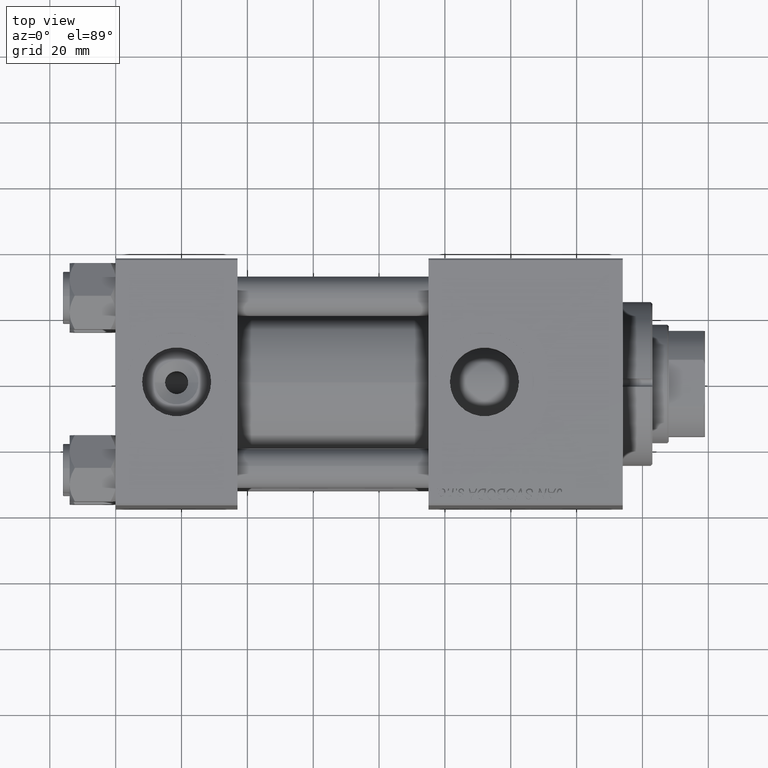
[diagram: clean part render]
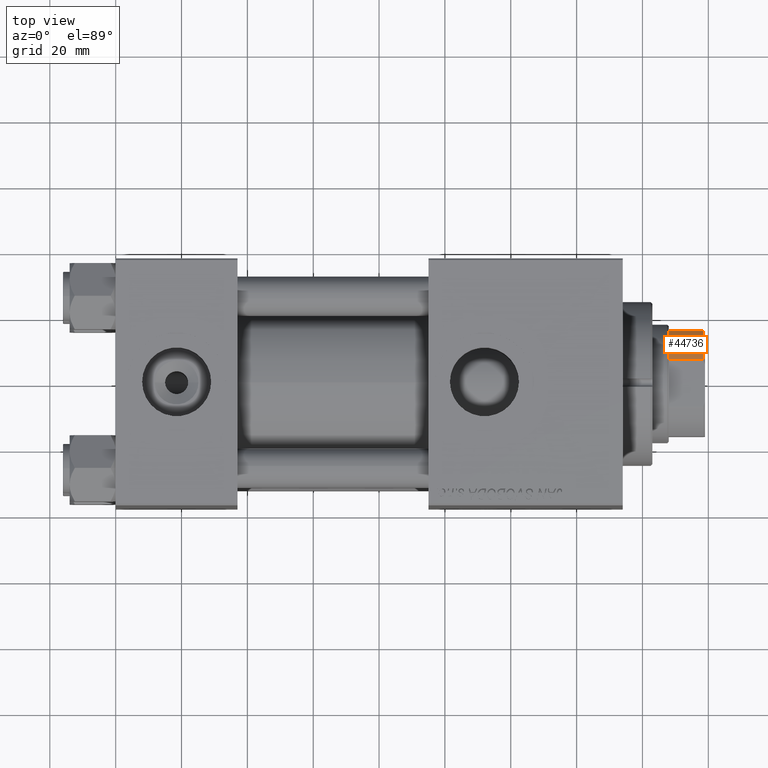
[diagram: same view with one face highlighted and labeled with its STEP entity id]
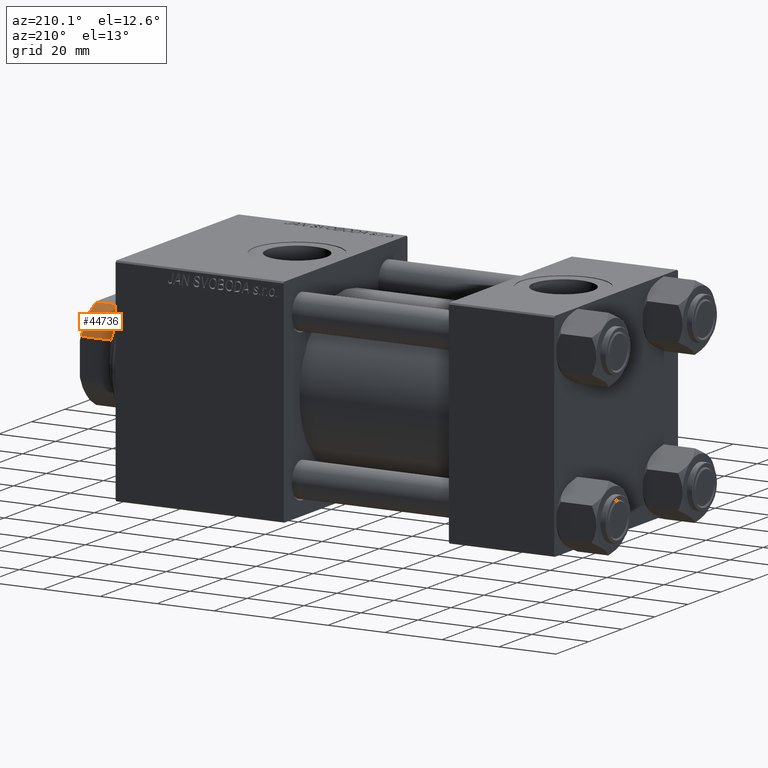
[diagram: same view with one face highlighted and labeled with its STEP entity id]
A machine part, top view. The second image highlights one B-rep face of the part: STEP entity #44736.
A second angle (auxiliary view) of the same face is appended — the face is thin or edge-on in the first view.
In plain terms, the highlighted cylindrical surface (partial cylindrical patch) has radius 17.5 mm, axis along (1, 0, 0).
Its self-contained STEP definition (entity closure, byte-faithful):
#100 = VERTEX_POINT ( 'NONE', #35506 ) ;
#626 = DIRECTION ( 'NONE',  ( 0.000000000000000000, 0.000000000000000000, 1.000000000000000000 ) ) ;
#1994 = VECTOR ( 'NONE', #14308, 1000.000000000000000 ) ;
#2798 = DIRECTION ( 'NONE',  ( -0.000000000000000000, -0.000000000000000000, 1.000000000000000000 ) ) ;
#3051 = EDGE_CURVE ( 'NONE', #24495, #100, #24473, .T. ) ;
#3950 = DIRECTION ( 'NONE',  ( 1.000000000000000000, 0.000000000000000000, 0.000000000000000000 ) ) ;
#4335 = LINE ( 'NONE', #24442, #18890 ) ;
#6671 = LINE ( 'NONE', #34220, #1994 ) ;
#8783 = ORIENTED_EDGE ( 'NONE', *, *, #46703, .T. ) ;
#9441 = CIRCLE ( 'NONE', #50189, 17.50000000000000000 ) ;
#14308 = DIRECTION ( 'NONE',  ( -0.000000000000000000, -0.000000000000000000, 1.000000000000000000 ) ) ;
#15404 = CARTESIAN_POINT ( 'NONE',  ( 0.000000000000000000, 0.000000000000000000, 131.0000000000000000 ) ) ;
#16980 = ORIENTED_EDGE ( 'NONE', *, *, #43119, .T. ) ;
#17602 = DIRECTION ( 'NONE',  ( -0.000000000000000000, -0.000000000000000000, -1.000000000000000000 ) ) ;
#18890 = VECTOR ( 'NONE', #35197, 1000.000000000000000 ) ;
#19057 = CARTESIAN_POINT ( 'NONE',  ( -7.088723439378915359, -16.00000000000000000, 141.5000000000000284 ) ) ;
#22158 = CARTESIAN_POINT ( 'NONE',  ( 0.000000000000000000, 0.000000000000000000, -0.001000000000001000089 ) ) ;
#22498 = AXIS2_PLACEMENT_3D ( 'NONE', #22158, #2798, #49460 ) ;
#23110 = VERTEX_POINT ( 'NONE', #38155 ) ;
#24442 = CARTESIAN_POINT ( 'NONE',  ( -16.00000000000000000, -7.088723439378919799, -0.001000000000001000089 ) ) ;
#24473 = CIRCLE ( 'NONE', #31019, 17.50000000000003908 ) ;
#24495 = VERTEX_POINT ( 'NONE', #46706 ) ;
#27217 = ORIENTED_EDGE ( 'NONE', *, *, #35401, .F. ) ;
#31019 = AXIS2_PLACEMENT_3D ( 'NONE', #15404, #626, #3950 ) ;
#34164 = CYLINDRICAL_SURFACE ( 'NONE', #22498, 17.50000000000000000 ) ;
#34220 = CARTESIAN_POINT ( 'NONE',  ( -7.088723439378915359, -16.00000000000000000, -0.001000000000001000089 ) ) ;
#34630 = ORIENTED_EDGE ( 'NONE', *, *, #3051, .T. ) ;
#35197 = DIRECTION ( 'NONE',  ( -0.000000000000000000, -0.000000000000000000, 1.000000000000000000 ) ) ;
#35401 = EDGE_CURVE ( 'NONE', #24495, #23110, #4335, .T. ) ;
#35506 = CARTESIAN_POINT ( 'NONE',  ( -7.088723439378915359, -16.00000000000000000, 131.0000000000000284 ) ) ;
#37517 = DIRECTION ( 'NONE',  ( 1.000000000000000000, 0.000000000000000000, 0.000000000000000000 ) ) ;
#38155 = CARTESIAN_POINT ( 'NONE',  ( -16.00000000000000000, -7.088723439378919799, 141.5000000000000284 ) ) ;
#43119 = EDGE_CURVE ( 'NONE', #100, #50368, #6671, .T. ) ;
#44736 = ADVANCED_FACE ( 'NONE', ( #49208 ), #34164, .T. ) ;
#46703 = EDGE_CURVE ( 'NONE', #50368, #23110, #9441, .T. ) ;
#46706 = CARTESIAN_POINT ( 'NONE',  ( -16.00000000000000000, -7.088723439378919799, 131.0000000000000284 ) ) ;
#48990 = CARTESIAN_POINT ( 'NONE',  ( 0.000000000000000000, 0.000000000000000000, 141.5000000000000284 ) ) ;
#49208 = FACE_OUTER_BOUND ( 'NONE', #49676, .T. ) ;
#49460 = DIRECTION ( 'NONE',  ( 1.000000000000000000, 0.000000000000000000, 0.000000000000000000 ) ) ;
#49676 = EDGE_LOOP ( 'NONE', ( #16980, #8783, #27217, #34630 ) ) ;
#50189 = AXIS2_PLACEMENT_3D ( 'NONE', #48990, #17602, #37517 ) ;
#50368 = VERTEX_POINT ( 'NONE', #19057 ) ;